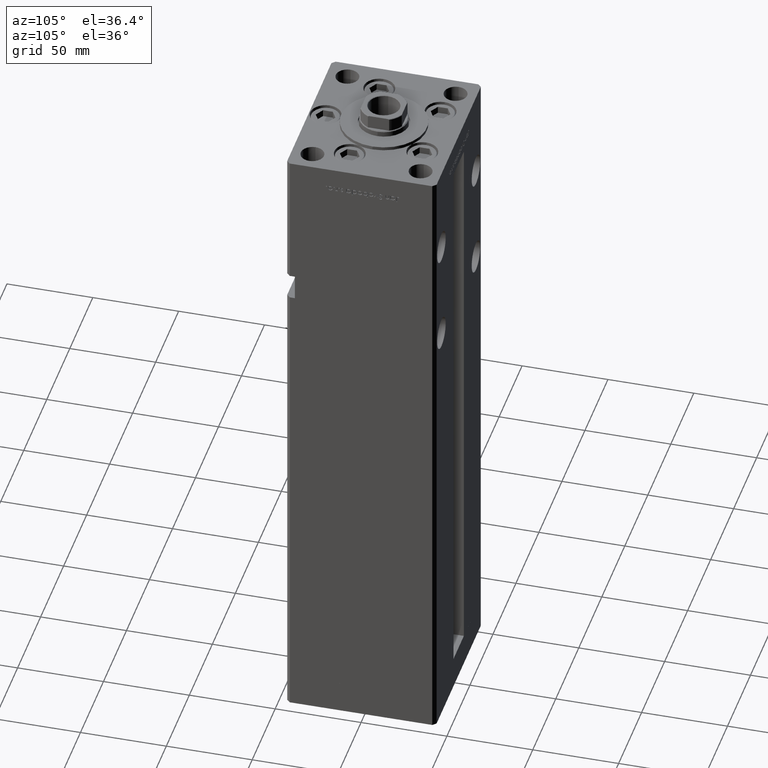
[diagram: clean part render]
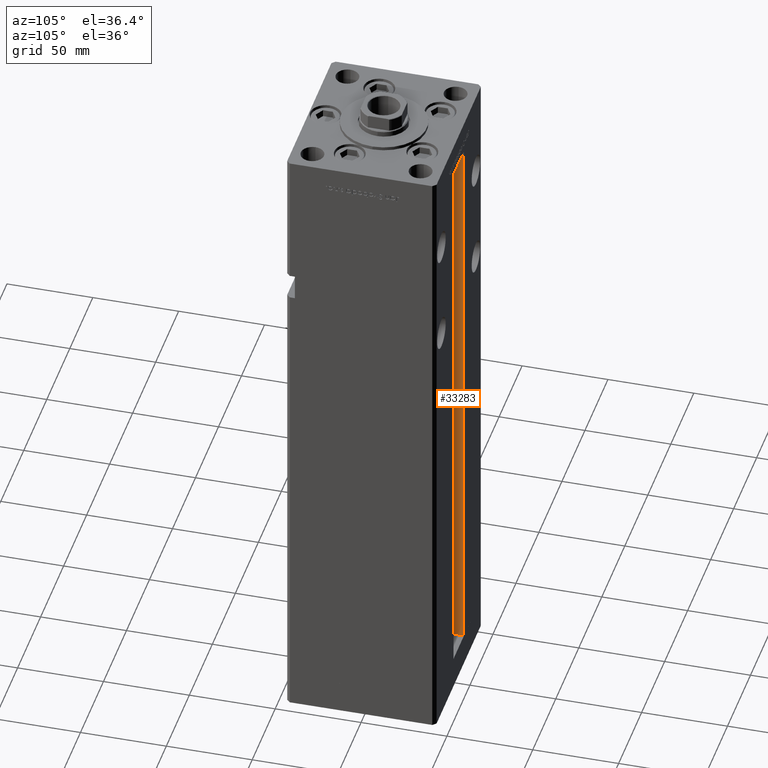
[diagram: same view with one face highlighted and labeled with its STEP entity id]
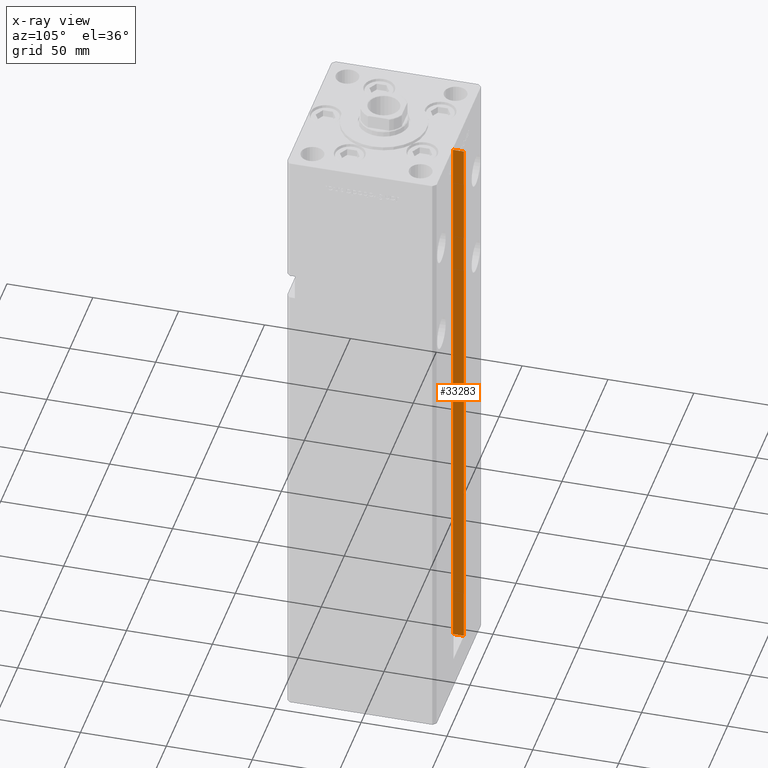
[diagram: x-ray of the same camera — body ghosted, the highlighted face saturated]
A machine part, auxiliary view. The second image highlights one B-rep face of the part: STEP entity #33283.
The next image is the same camera in x-ray: the body ghosted, the highlighted face saturated — about 0% of this face is hidden behind the body in this view.
In plain terms, the highlighted planar face has unit normal (-1, 0, 0).
Its self-contained STEP definition (entity closure, byte-faithful):
#1055 = VECTOR ( 'NONE', #32417, 1000.000000000000000 ) ;
#2989 = DIRECTION ( 'NONE',  ( -0.000000000000000000, -0.000000000000000000, 1.000000000000000000 ) ) ;
#5382 = CARTESIAN_POINT ( 'NONE',  ( -11.24999999999999645, 0.000000000000000000, 338.5000000000000000 ) ) ;
#6414 = EDGE_CURVE ( 'NONE', #43599, #20505, #18601, .T. ) ;
#7177 = CARTESIAN_POINT ( 'NONE',  ( -11.24999999999999645, 37.00000000000000000, 338.5000000000000000 ) ) ;
#9921 = ORIENTED_EDGE ( 'NONE', *, *, #25066, .F. ) ;
#12281 = CARTESIAN_POINT ( 'NONE',  ( -11.24999999999999645, 43.50000000000000000, 338.5000000000000000 ) ) ;
#12359 = AXIS2_PLACEMENT_3D ( 'NONE', #31315, #43979, #52851 ) ;
#12923 = DIRECTION ( 'NONE',  ( 0.000000000000000000, 1.000000000000000000, 0.000000000000000000 ) ) ;
#14101 = ORIENTED_EDGE ( 'NONE', *, *, #21142, .F. ) ;
#16284 = CARTESIAN_POINT ( 'NONE',  ( -11.24999999999999645, 37.00000000000000000, 0.000000000000000000 ) ) ;
#18601 = LINE ( 'NONE', #31758, #41881 ) ;
#20505 = VERTEX_POINT ( 'NONE', #12281 ) ;
#21142 = EDGE_CURVE ( 'NONE', #43599, #53158, #46556, .T. ) ;
#25066 = EDGE_CURVE ( 'NONE', #53158, #33071, #28372, .T. ) ;
#26277 = CARTESIAN_POINT ( 'NONE',  ( -11.24999999999999645, 43.50000000000000000, 0.000000000000000000 ) ) ;
#28069 = FACE_OUTER_BOUND ( 'NONE', #29300, .T. ) ;
#28372 = LINE ( 'NONE', #16284, #1055 ) ;
#28442 = VECTOR ( 'NONE', #42532, 1000.000000000000000 ) ;
#29300 = EDGE_LOOP ( 'NONE', ( #9921, #14101, #44201, #40893 ) ) ;
#31315 = CARTESIAN_POINT ( 'NONE',  ( -11.24999999999999645, 37.00000000000000000, 0.000000000000000000 ) ) ;
#31758 = CARTESIAN_POINT ( 'NONE',  ( -11.24999999999999645, 43.50000000000000000, 0.000000000000000000 ) ) ;
#32417 = DIRECTION ( 'NONE',  ( -0.000000000000000000, -0.000000000000000000, 1.000000000000000000 ) ) ;
#33071 = VERTEX_POINT ( 'NONE', #7177 ) ;
#33283 = ADVANCED_FACE ( 'NONE', ( #28069 ), #36435, .F. ) ;
#35530 = CARTESIAN_POINT ( 'NONE',  ( -11.24999999999999645, 37.00000000000000000, 0.000000000000000000 ) ) ;
#36435 = PLANE ( 'NONE',  #12359 ) ;
#37808 = EDGE_CURVE ( 'NONE', #33071, #20505, #50063, .T. ) ;
#38226 = CARTESIAN_POINT ( 'NONE',  ( -11.24999999999999645, 37.00000000000000000, 0.000000000000000000 ) ) ;
#40893 = ORIENTED_EDGE ( 'NONE', *, *, #37808, .F. ) ;
#41881 = VECTOR ( 'NONE', #2989, 1000.000000000000000 ) ;
#42532 = DIRECTION ( 'NONE',  ( -0.000000000000000000, -1.000000000000000000, -0.000000000000000000 ) ) ;
#43599 = VERTEX_POINT ( 'NONE', #26277 ) ;
#43979 = DIRECTION ( 'NONE',  ( -1.000000000000000000, 0.000000000000000000, 0.000000000000000000 ) ) ;
#44201 = ORIENTED_EDGE ( 'NONE', *, *, #6414, .T. ) ;
#44287 = VECTOR ( 'NONE', #12923, 1000.000000000000000 ) ;
#46556 = LINE ( 'NONE', #38226, #28442 ) ;
#50063 = LINE ( 'NONE', #5382, #44287 ) ;
#52851 = DIRECTION ( 'NONE',  ( 0.000000000000000000, 0.000000000000000000, 1.000000000000000000 ) ) ;
#53158 = VERTEX_POINT ( 'NONE', #35530 ) ;